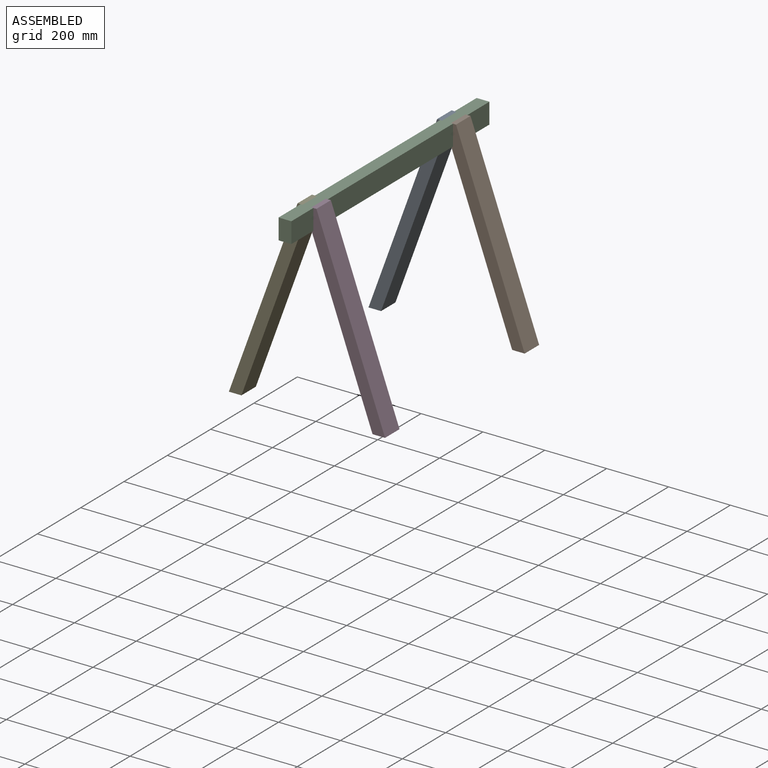
[diagram: assembled view]
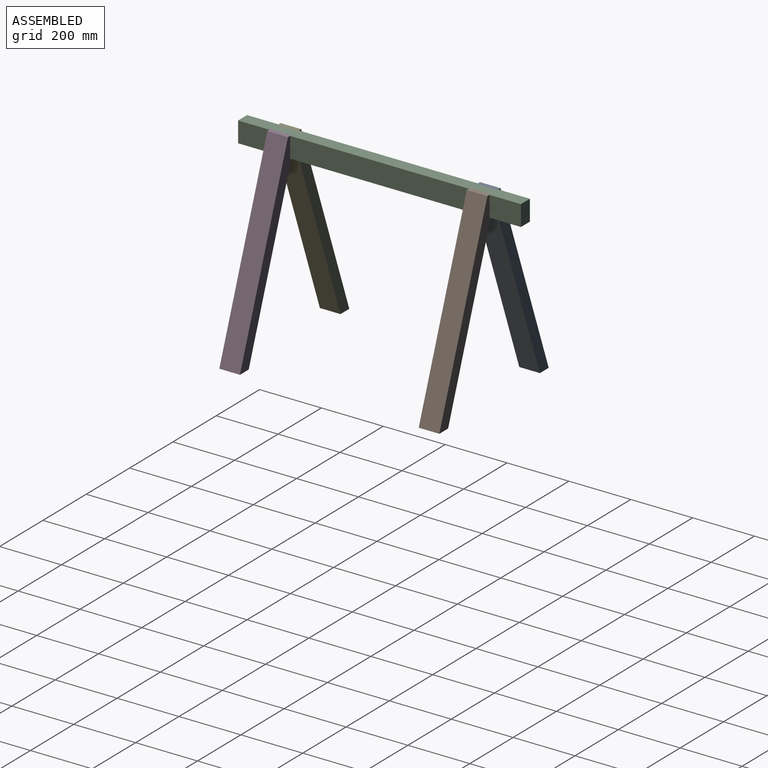
[diagram: assembled view, second angle]
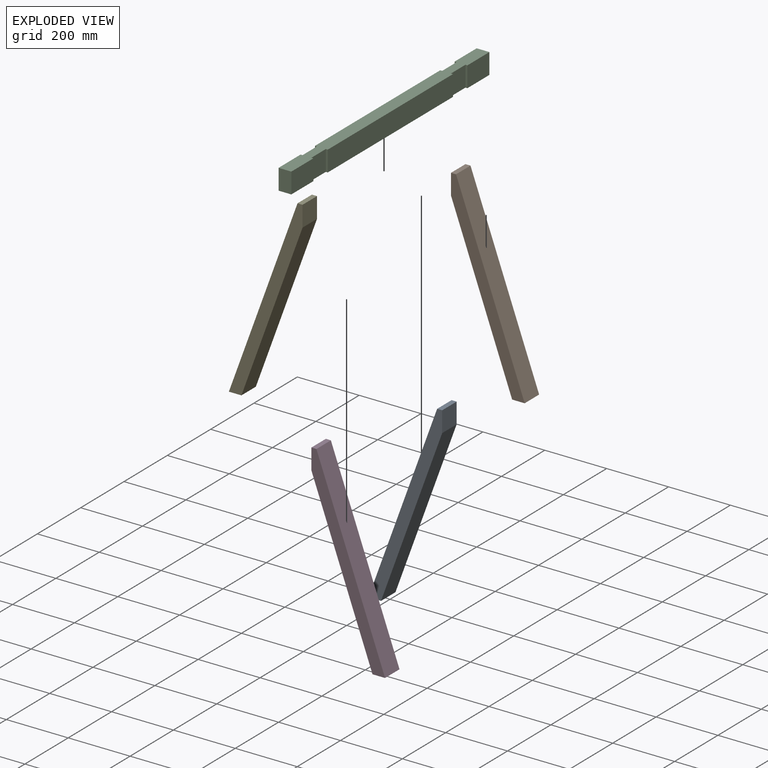
[diagram: exploded view]
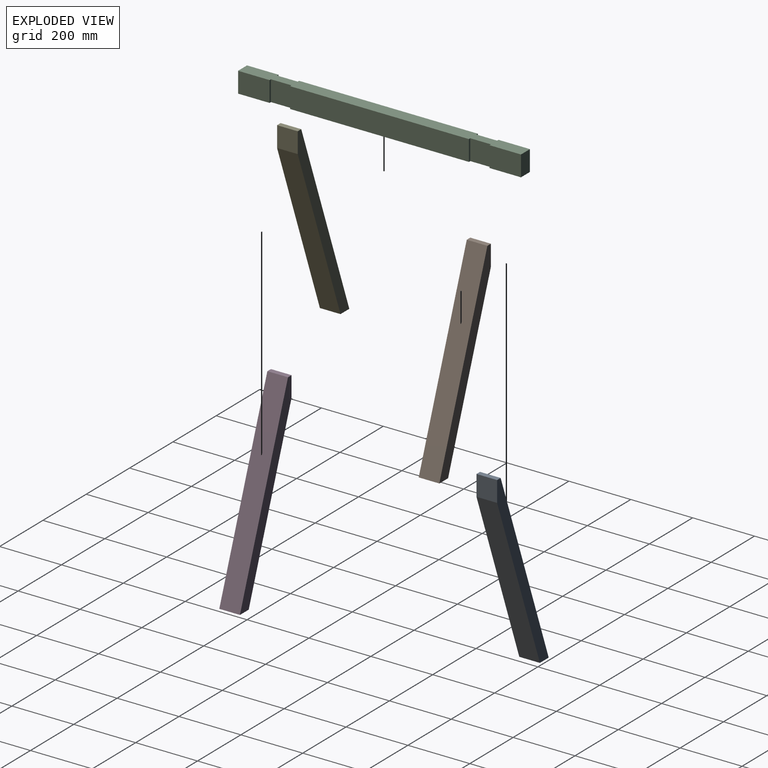
[diagram: exploded view, second angle]
ASSEMBLY  parts=5 mates=4
PART A: 7 faces, bbox 238.2x66.7x609.6 mm
  f0: plane 609.6x221.88mm, normal (-0.94,0,0.34), area 43253.6mm2, adj f1,f4,f5,f6
  f1: plane 66.68x40.55mm, normal (0,0,-1), area 2703.3mm2, adj f0,f2,f5,f6
  f2: plane 542.93x197.61mm, normal (0.94,0,-0.34), area 38522.7mm2, adj f1,f3,f5,f6
  f3: plane 66.68x66.68mm, normal (1,0,0), area 4445.6mm2, adj f2,f4,f5,f6
  f4: plane 66.68x16.28mm, normal (0,0,1), area 1085.3mm2, adj f0,f3,f5,f6
  f5: plane 609.6x238.15mm, normal (0,-1,0), area 23907.3mm2, adj f0,f1,f2,f3,f4
  f6: plane 609.6x238.15mm, normal (0,1,0), area 23907.3mm2, adj f0,f1,f2,f3,f4
PART B: same geometry as A
PART C: 22 faces, bbox 41.3x914.4x66.7 mm
  f0: plane 66.68x6.35mm, normal (0,1,0), area 423.4mm2, adj f1,f19,f20,f21
  f1: plane 101.6x66.68mm, normal (-1,0,0), area 6774.2mm2, adj f0,f2,f20,f21
  f2: plane 66.68x41.28mm, normal (0,-1,0), area 2752mm2, adj f1,f3,f20,f21
  f3: plane 101.6x66.68mm, normal (1,0,0), area 6774.2mm2, adj f2,f4,f20,f21
  f4: plane 66.68x6.35mm, normal (0,1,0), area 423.4mm2, adj f3,f5,f20,f21
  f5: plane 66.68x66.68mm, normal (1,0,0), area 4445.6mm2, adj f4,f6,f20,f21
  f6: plane 66.68x6.35mm, normal (0,-1,0), area 423.4mm2, adj f5,f7,f20,f21
  f7: plane 577.85x66.68mm, normal (1,0,0), area 38528.1mm2, adj f6,f8,f20,f21
  f8: plane 66.68x6.35mm, normal (0,1,0), area 423.4mm2, adj f7,f9,f20,f21
  f9: plane 66.68x66.68mm, normal (1,0,0), area 4445.6mm2, adj f8,f10,f20,f21
  f10: plane 66.68x6.35mm, normal (0,-1,0), area 423.4mm2, adj f9,f11,f20,f21
  f11: plane 101.6x66.68mm, normal (1,0,0), area 6774.2mm2, adj f10,f12,f20,f21
  f12: plane 66.68x41.28mm, normal (0,1,0), area 2752mm2, adj f11,f13,f20,f21
  f13: plane 101.6x66.68mm, normal (-1,0,0), area 6774.2mm2, adj f12,f14,f20,f21
  f14: plane 66.68x6.35mm, normal (0,-1,0), area 423.4mm2, adj f13,f15,f20,f21
  f15: plane 66.68x66.68mm, normal (-1,0,0), area 4445.6mm2, adj f14,f16,f20,f21
  f16: plane 66.68x6.35mm, normal (0,1,0), area 423.4mm2, adj f15,f17,f20,f21
  f17: plane 577.85x66.68mm, normal (-1,0,0), area 38528.1mm2, adj f16,f18,f20,f21
  f18: plane 66.68x6.35mm, normal (0,-1,0), area 423.4mm2, adj f17,f19,f20,f21
  f19: plane 66.68x66.68mm, normal (-1,0,0), area 4445.6mm2, adj f0,f18,f20,f21
  f20: plane 914.4x41.28mm, normal (0,0,1), area 36048.3mm2, adj f0,f1,f2,f3,f4,f5,f6,f7
  f21: plane 914.4x41.28mm, normal (0,0,-1), area 36048.3mm2, adj f0,f1,f2,f3,f4,f5,f6,f7
PART D: same geometry as A
PART E: same geometry as A
PLACE A t=(440.7,812.8,-264.95)mm
PLACE B rot(axis=(0,0,1),180deg) t=(-399.42,746.12,-264.95)mm
PLACE C at identity fixed
PLACE D rot(axis=(0,0,1),180deg) t=(-399.42,101.6,-264.95)mm
PLACE E t=(440.7,168.28,-264.95)mm
MATE fastened A.f4 <-> C.f20  axis (0,0,1) through (6.35,779.46,66.68)mm
MATE fastened D.f4 <-> C.f20  axis (0,0,1) through (34.92,134.94,66.68)mm
MATE fastened E.f4 <-> C.f20  axis (0,0,1) through (6.35,134.94,66.68)mm
MATE fastened B.f4 <-> C.f20  axis (0,0,1) through (34.93,779.46,66.68)mm
